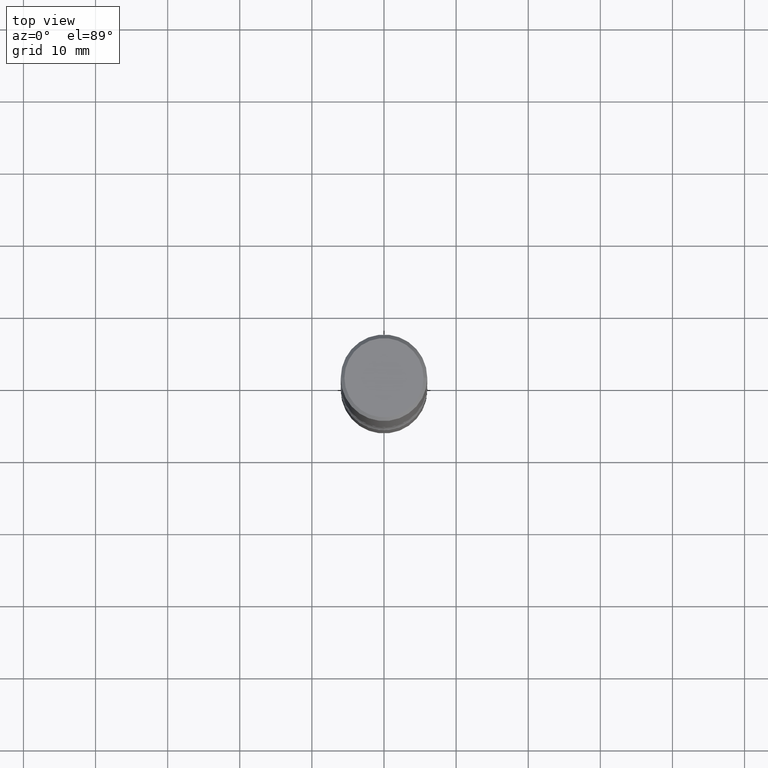
[diagram: clean part render]
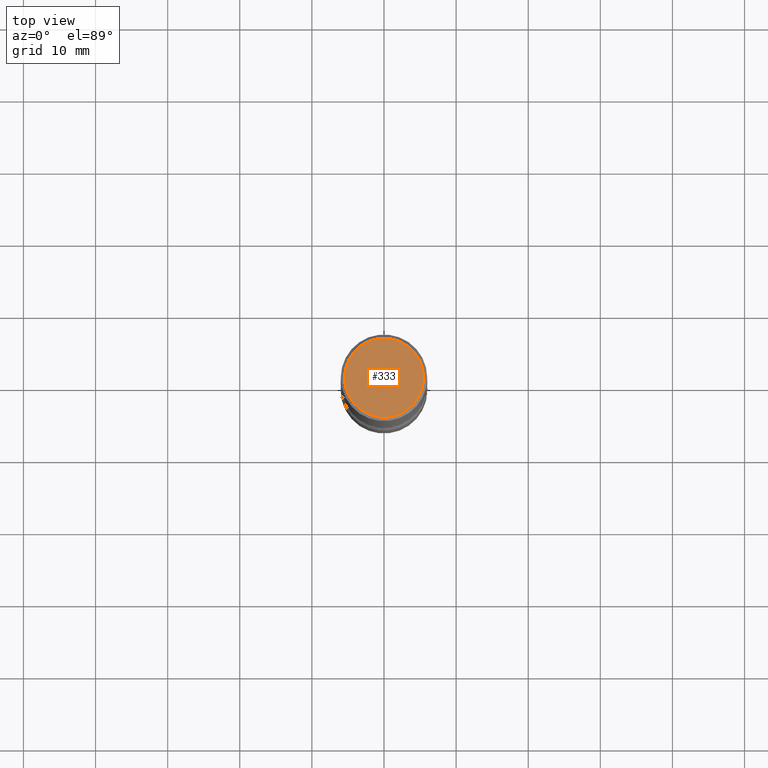
[diagram: same view with one face highlighted and labeled with its STEP entity id]
A machine part, top view. The second image highlights one B-rep face of the part: STEP entity #333.
In plain terms, the highlighted planar face has unit normal (0, -0, -1).
Its self-contained STEP definition (entity closure, byte-faithful):
#34 = EDGE_CURVE ( 'NONE', #427, #395, #387, .T. ) ;
#118 = FACE_OUTER_BOUND ( 'NONE', #360, .T. ) ;
#156 = CARTESIAN_POINT ( 'NONE',  ( -1.043851414335219820E-46, 1.490343170380447200E-32, 4.268512490100411279E-18 ) ) ;
#158 = DIRECTION ( 'NONE',  ( 1.000000000000000000, -6.982962677686266711E-15, 4.876217060660159599E-29 ) ) ;
#168 = EDGE_CURVE ( 'NONE', #395, #427, #400, .T. ) ;
#171 = PLANE ( 'NONE',  #241 ) ;
#205 = AXIS2_PLACEMENT_3D ( 'NONE', #396, #390, #422 ) ;
#241 = AXIS2_PLACEMENT_3D ( 'NONE', #305, #302, #545 ) ;
#278 = CARTESIAN_POINT ( 'NONE',  ( -0.2161999999999998368, 1.544631344304201183E-15, 4.268512490089730842E-18 ) ) ;
#302 = DIRECTION ( 'NONE',  ( 2.438088387897960049E-29, -3.491481338843145188E-15, -1.000000000000000000 ) ) ;
#305 = CARTESIAN_POINT ( 'NONE',  ( 1.509716530915769534E-15, 0.2161999999999998368, -7.527240092128373149E-16 ) ) ;
#333 = ADVANCED_FACE ( 'NONE', ( #118 ), #171, .F. ) ;
#360 = EDGE_LOOP ( 'NONE', ( #489, #363 ) ) ;
#363 = ORIENTED_EDGE ( 'NONE', *, *, #168, .T. ) ;
#376 = DIRECTION ( 'NONE',  ( -2.445468806185136597E-29, 3.491481338843145583E-15, 1.000000000000000000 ) ) ;
#387 = CIRCLE ( 'NONE', #433, 0.2161999999999998368 ) ;
#390 = DIRECTION ( 'NONE',  ( -2.445468806185136597E-29, 3.491481338843145583E-15, 1.000000000000000000 ) ) ;
#395 = VERTEX_POINT ( 'NONE', #439 ) ;
#396 = CARTESIAN_POINT ( 'NONE',  ( -1.043851414335219820E-46, 1.490343170380447200E-32, 4.268512490100411279E-18 ) ) ;
#400 = CIRCLE ( 'NONE', #205, 0.2161999999999998368 ) ;
#422 = DIRECTION ( 'NONE',  ( 1.000000000000000000, -6.982962677686266711E-15, 4.876217060660159599E-29 ) ) ;
#427 = VERTEX_POINT ( 'NONE', #278 ) ;
#433 = AXIS2_PLACEMENT_3D ( 'NONE', #156, #376, #158 ) ;
#439 = CARTESIAN_POINT ( 'NONE',  ( 0.2161999999999998368, -1.586759460484351002E-15, 4.268512490111238857E-18 ) ) ;
#489 = ORIENTED_EDGE ( 'NONE', *, *, #34, .T. ) ;
#545 = DIRECTION ( 'NONE',  ( -1.000000000000000000, 6.982962677686265922E-15, -4.876176775795935793E-29 ) ) ;